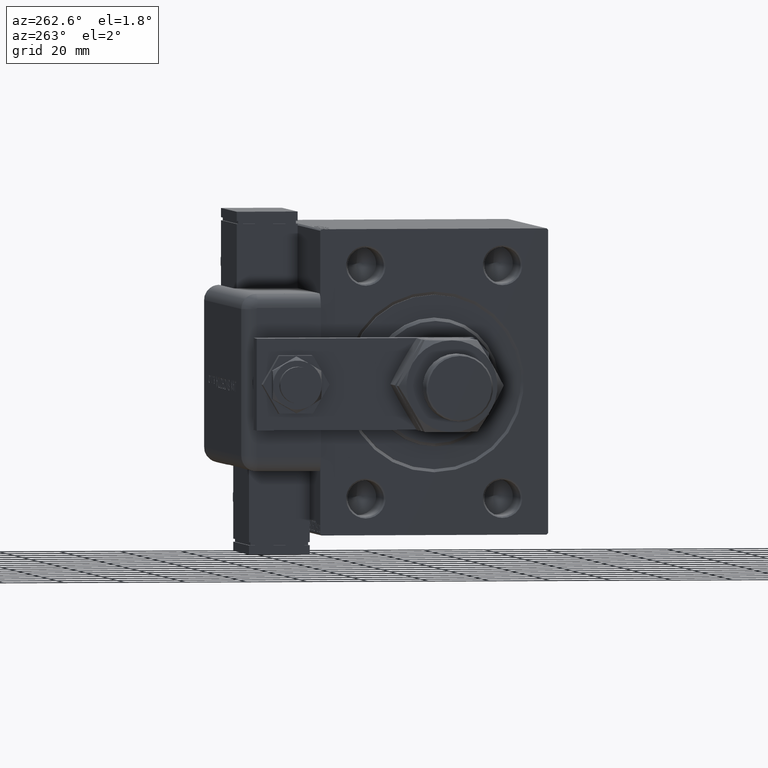
[diagram: clean part render]
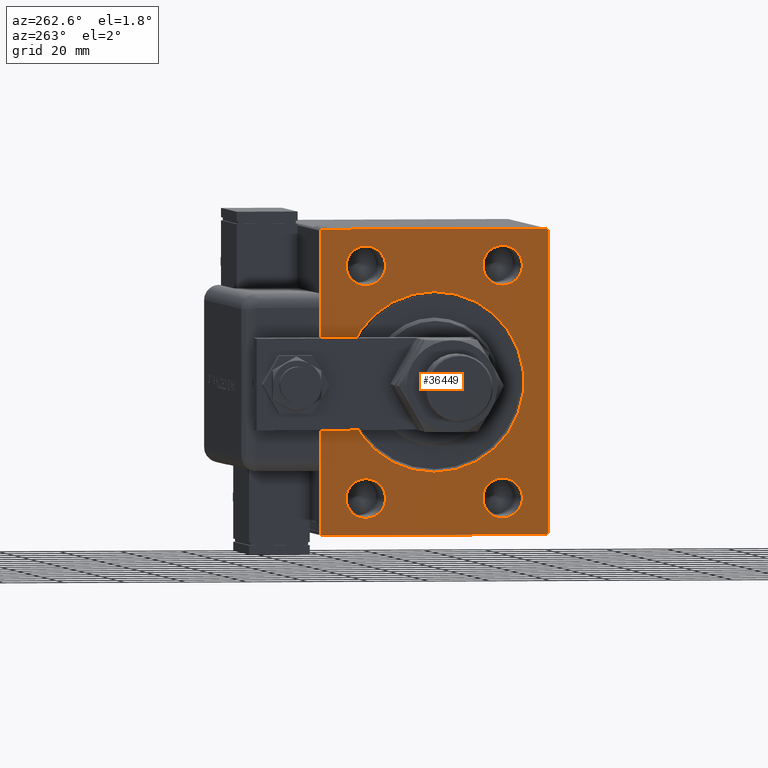
[diagram: same view with one face highlighted and labeled with its STEP entity id]
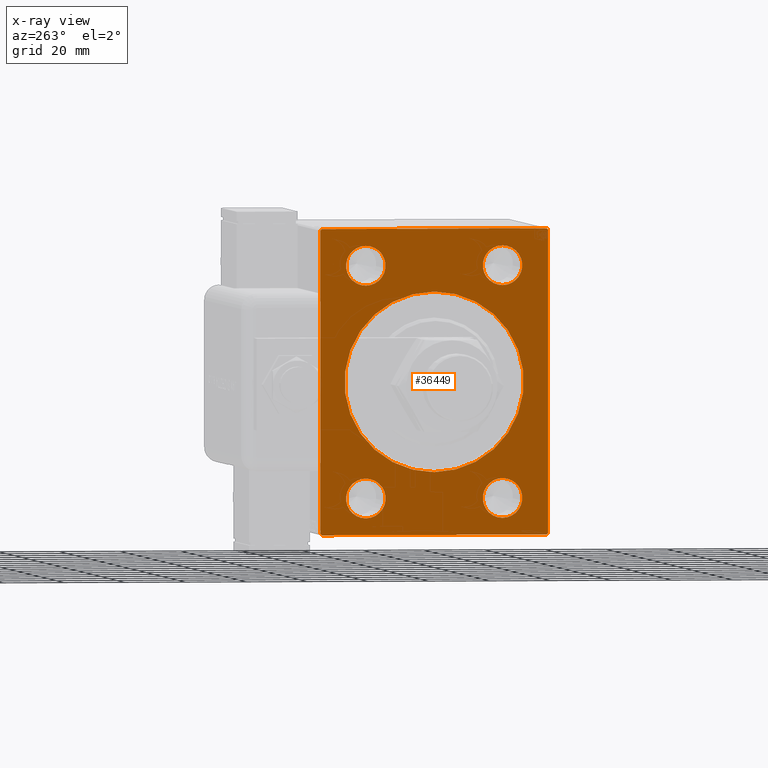
[diagram: x-ray of the same camera — body ghosted, the highlighted face saturated]
A machine part, auxiliary view. The second image highlights one B-rep face of the part: STEP entity #36449.
The next image is the same camera in x-ray: the body ghosted, the highlighted face saturated — about 0% of this face is hidden behind the body in this view.
In plain terms, the highlighted planar face has unit normal (1, 0, 0).
Its self-contained STEP definition (entity closure, byte-faithful):
#363 = CARTESIAN_POINT ( 'NONE',  ( 0.000000000000000000, 0.000000000000000000, 29.50000000000001421 ) ) ;
#383 = AXIS2_PLACEMENT_3D ( 'NONE', #22473, #26860, #16531 ) ;
#700 = DIRECTION ( 'NONE',  ( 0.000000000000000000, 0.000000000000000000, -1.000000000000000000 ) ) ;
#1787 = CARTESIAN_POINT ( 'NONE',  ( 0.000000000000000000, 22.50000000000000000, -31.50000000000001421 ) ) ;
#2289 = LINE ( 'NONE', #48936, #58512 ) ;
#2384 = CIRCLE ( 'NONE', #383, 6.499999999999992006 ) ;
#2466 = LINE ( 'NONE', #36866, #10377 ) ;
#2469 = DIRECTION ( 'NONE',  ( 1.000000000000000000, 0.000000000000000000, 0.000000000000000000 ) ) ;
#3130 = CIRCLE ( 'NONE', #54095, 6.499999999999992006 ) ;
#3387 = VERTEX_POINT ( 'NONE', #363 ) ;
#3608 = CARTESIAN_POINT ( 'NONE',  ( 0.000000000000000000, 0.000000000000000000, 0.000000000000000000 ) ) ;
#3864 = ORIENTED_EDGE ( 'NONE', *, *, #16197, .T. ) ;
#4025 = VERTEX_POINT ( 'NONE', #41399 ) ;
#4077 = VERTEX_POINT ( 'NONE', #47349 ) ;
#4097 = EDGE_CURVE ( 'NONE', #44747, #4077, #18526, .T. ) ;
#4647 = DIRECTION ( 'NONE',  ( 0.000000000000000000, 0.000000000000000000, -1.000000000000000000 ) ) ;
#4697 = EDGE_CURVE ( 'NONE', #55842, #24054, #43068, .T. ) ;
#4980 = DIRECTION ( 'NONE',  ( 1.000000000000000000, 0.000000000000000000, 0.000000000000000000 ) ) ;
#6086 = DIRECTION ( 'NONE',  ( 0.000000000000000000, 0.000000000000000000, -1.000000000000000000 ) ) ;
#6271 = CIRCLE ( 'NONE', #31364, 6.499999999999992006 ) ;
#6301 = VERTEX_POINT ( 'NONE', #53028 ) ;
#6767 = VERTEX_POINT ( 'NONE', #25594 ) ;
#7049 = CARTESIAN_POINT ( 'NONE',  ( 0.000000000000000000, 37.00000000000000711, 50.00000000000000711 ) ) ;
#7498 = DIRECTION ( 'NONE',  ( 1.000000000000000000, 0.000000000000000000, 0.000000000000000000 ) ) ;
#8853 = DIRECTION ( 'NONE',  ( -0.000000000000000000, -0.7071067811865474617, 0.7071067811865474617 ) ) ;
#9031 = DIRECTION ( 'NONE',  ( 0.000000000000000000, -0.7071067811865524577, -0.7071067811865426878 ) ) ;
#9089 = ORIENTED_EDGE ( 'NONE', *, *, #20782, .T. ) ;
#9109 = ORIENTED_EDGE ( 'NONE', *, *, #4097, .T. ) ;
#9238 = EDGE_LOOP ( 'NONE', ( #44792, #43917 ) ) ;
#9317 = EDGE_CURVE ( 'NONE', #54900, #6301, #55876, .T. ) ;
#10377 = VECTOR ( 'NONE', #31238, 1000.000000000000000 ) ;
#10386 = CARTESIAN_POINT ( 'NONE',  ( 0.000000000000000000, -36.99999999999999289, 49.99999999999998579 ) ) ;
#10480 = ORIENTED_EDGE ( 'NONE', *, *, #51135, .F. ) ;
#11156 = VERTEX_POINT ( 'NONE', #22005 ) ;
#11967 = ORIENTED_EDGE ( 'NONE', *, *, #40007, .F. ) ;
#12080 = LINE ( 'NONE', #44957, #26357 ) ;
#13050 = FACE_BOUND ( 'NONE', #59377, .T. ) ;
#13508 = DIRECTION ( 'NONE',  ( 0.000000000000000000, 0.000000000000000000, -1.000000000000000000 ) ) ;
#13843 = ORIENTED_EDGE ( 'NONE', *, *, #4697, .T. ) ;
#14023 = DIRECTION ( 'NONE',  ( 1.000000000000000000, 0.000000000000000000, 0.000000000000000000 ) ) ;
#15341 = EDGE_CURVE ( 'NONE', #4025, #3387, #23292, .T. ) ;
#15475 = CARTESIAN_POINT ( 'NONE',  ( 0.000000000000000000, 22.50000000000000000, -38.00000000000000711 ) ) ;
#16197 = EDGE_CURVE ( 'NONE', #11156, #42169, #23341, .T. ) ;
#16231 = CARTESIAN_POINT ( 'NONE',  ( 0.000000000000000000, 0.000000000000000000, 0.000000000000000000 ) ) ;
#16531 = DIRECTION ( 'NONE',  ( 0.000000000000000000, 0.000000000000000000, -1.000000000000000000 ) ) ;
#18398 = LINE ( 'NONE', #27496, #23951 ) ;
#18419 = CARTESIAN_POINT ( 'NONE',  ( 0.000000000000000000, 22.50000000000000000, 37.99999999999999289 ) ) ;
#18526 = LINE ( 'NONE', #37629, #51045 ) ;
#18632 = DIRECTION ( 'NONE',  ( 0.000000000000000000, 0.000000000000000000, -1.000000000000000000 ) ) ;
#19288 = CIRCLE ( 'NONE', #55303, 6.499999999999992006 ) ;
#19309 = CARTESIAN_POINT ( 'NONE',  ( 0.000000000000000000, 22.50000000000000000, -38.00000000000000711 ) ) ;
#19544 = ORIENTED_EDGE ( 'NONE', *, *, #41555, .T. ) ;
#20033 = ORIENTED_EDGE ( 'NONE', *, *, #36833, .T. ) ;
#20782 = EDGE_CURVE ( 'NONE', #24054, #55842, #29535, .T. ) ;
#21511 = DIRECTION ( 'NONE',  ( 0.000000000000000000, 0.000000000000000000, -1.000000000000000000 ) ) ;
#22005 = CARTESIAN_POINT ( 'NONE',  ( 0.000000000000000000, 22.50000000000000000, -44.50000000000000000 ) ) ;
#22446 = FACE_BOUND ( 'NONE', #9238, .T. ) ;
#22473 = CARTESIAN_POINT ( 'NONE',  ( 0.000000000000000000, -22.50000000000000000, 37.99999999999999289 ) ) ;
#23033 = EDGE_CURVE ( 'NONE', #46882, #30527, #55410, .T. ) ;
#23199 = CARTESIAN_POINT ( 'NONE',  ( 0.000000000000000000, 22.50000000000000000, 37.99999999999999289 ) ) ;
#23292 = CIRCLE ( 'NONE', #58314, 29.50000000000001421 ) ;
#23341 = CIRCLE ( 'NONE', #52370, 6.499999999999992006 ) ;
#23591 = ORIENTED_EDGE ( 'NONE', *, *, #47591, .F. ) ;
#23951 = VECTOR ( 'NONE', #9031, 1000.000000000000000 ) ;
#24054 = VERTEX_POINT ( 'NONE', #51849 ) ;
#25378 = CARTESIAN_POINT ( 'NONE',  ( 0.000000000000000000, -37.50000000000000000, 49.99999999999998579 ) ) ;
#25594 = CARTESIAN_POINT ( 'NONE',  ( 0.000000000000000000, -22.50000000000000000, 31.50000000000000000 ) ) ;
#26357 = VECTOR ( 'NONE', #50275, 1000.000000000000000 ) ;
#26454 = ORIENTED_EDGE ( 'NONE', *, *, #15341, .T. ) ;
#26860 = DIRECTION ( 'NONE',  ( 1.000000000000000000, 0.000000000000000000, 0.000000000000000000 ) ) ;
#27445 = FACE_BOUND ( 'NONE', #44086, .T. ) ;
#27496 = CARTESIAN_POINT ( 'NONE',  ( 0.000000000000000000, 37.50000000000000711, -49.50000000000001421 ) ) ;
#28021 = CARTESIAN_POINT ( 'NONE',  ( 0.000000000000000000, -22.50000000000000000, -38.00000000000000711 ) ) ;
#28537 = AXIS2_PLACEMENT_3D ( 'NONE', #23199, #37907, #13508 ) ;
#28636 = VECTOR ( 'NONE', #700, 1000.000000000000000 ) ;
#29235 = DIRECTION ( 'NONE',  ( 1.000000000000000000, 0.000000000000000000, 0.000000000000000000 ) ) ;
#29535 = CIRCLE ( 'NONE', #28537, 6.499999999999992006 ) ;
#30084 = VECTOR ( 'NONE', #55257, 999.9999999999998863 ) ;
#30194 = CIRCLE ( 'NONE', #51241, 29.50000000000001421 ) ;
#30375 = VERTEX_POINT ( 'NONE', #57069 ) ;
#30475 = VECTOR ( 'NONE', #36601, 999.9999999999998863 ) ;
#30527 = VERTEX_POINT ( 'NONE', #10386 ) ;
#31238 = DIRECTION ( 'NONE',  ( 0.000000000000000000, 1.000000000000000000, 0.000000000000000000 ) ) ;
#31364 = AXIS2_PLACEMENT_3D ( 'NONE', #15475, #29235, #6086 ) ;
#31839 = FACE_BOUND ( 'NONE', #40744, .T. ) ;
#32014 = CARTESIAN_POINT ( 'NONE',  ( 0.000000000000000000, 37.00000000000000711, 50.00000000000000711 ) ) ;
#32138 = PLANE ( 'NONE',  #33164 ) ;
#32371 = DIRECTION ( 'NONE',  ( 1.000000000000000000, 0.000000000000000000, 0.000000000000000000 ) ) ;
#32473 = CARTESIAN_POINT ( 'NONE',  ( 0.000000000000000000, -37.00000000000000000, -50.00000000000000000 ) ) ;
#33164 = AXIS2_PLACEMENT_3D ( 'NONE', #55957, #46563, #21511 ) ;
#33559 = CARTESIAN_POINT ( 'NONE',  ( 0.000000000000000000, 22.50000000000000000, 31.50000000000000000 ) ) ;
#33980 = EDGE_CURVE ( 'NONE', #58754, #43336, #3130, .T. ) ;
#35135 = ORIENTED_EDGE ( 'NONE', *, *, #44924, .F. ) ;
#35946 = VERTEX_POINT ( 'NONE', #38831 ) ;
#36004 = CARTESIAN_POINT ( 'NONE',  ( 0.000000000000000000, -22.50000000000000000, -31.50000000000001421 ) ) ;
#36449 = ADVANCED_FACE ( 'NONE', ( #54734, #27445, #22446, #31839, #13050, #60051 ), #32138, .F. ) ;
#36601 = DIRECTION ( 'NONE',  ( -0.000000000000000000, 0.7071067811865525687, 0.7071067811865425767 ) ) ;
#36833 = EDGE_CURVE ( 'NONE', #3387, #4025, #30194, .T. ) ;
#36866 = CARTESIAN_POINT ( 'NONE',  ( 0.000000000000000000, -37.50000000000000000, -50.00000000000000000 ) ) ;
#37629 = CARTESIAN_POINT ( 'NONE',  ( 0.000000000000000000, -37.00000000000000000, -50.00000000000000000 ) ) ;
#37907 = DIRECTION ( 'NONE',  ( 1.000000000000000000, 0.000000000000000000, 0.000000000000000000 ) ) ;
#38831 = CARTESIAN_POINT ( 'NONE',  ( 0.000000000000000000, 37.50000000000000711, -49.50000000000001421 ) ) ;
#38924 = VERTEX_POINT ( 'NONE', #41514 ) ;
#39846 = DIRECTION ( 'NONE',  ( 0.000000000000000000, -1.387778780781445676E-16, 1.000000000000000000 ) ) ;
#39956 = ORIENTED_EDGE ( 'NONE', *, *, #23033, .T. ) ;
#40007 = EDGE_CURVE ( 'NONE', #44747, #30375, #2466, .T. ) ;
#40070 = EDGE_CURVE ( 'NONE', #38924, #6767, #2384, .T. ) ;
#40355 = CARTESIAN_POINT ( 'NONE',  ( 0.000000000000000000, -22.50000000000000000, 37.99999999999999289 ) ) ;
#40578 = ORIENTED_EDGE ( 'NONE', *, *, #9317, .T. ) ;
#40744 = EDGE_LOOP ( 'NONE', ( #9089, #13843 ) ) ;
#40872 = EDGE_LOOP ( 'NONE', ( #20033, #26454 ) ) ;
#41399 = CARTESIAN_POINT ( 'NONE',  ( 0.000000000000000000, 3.612708057484693970E-15, -29.50000000000001421 ) ) ;
#41514 = CARTESIAN_POINT ( 'NONE',  ( 0.000000000000000000, -22.50000000000000000, 44.49999999999998579 ) ) ;
#41555 = EDGE_CURVE ( 'NONE', #42169, #11156, #6271, .T. ) ;
#41776 = DIRECTION ( 'NONE',  ( 0.000000000000000000, 0.000000000000000000, -1.000000000000000000 ) ) ;
#42169 = VERTEX_POINT ( 'NONE', #1787 ) ;
#42320 = EDGE_CURVE ( 'NONE', #43336, #58754, #19288, .T. ) ;
#42716 = ORIENTED_EDGE ( 'NONE', *, *, #33980, .T. ) ;
#43068 = CIRCLE ( 'NONE', #47066, 6.499999999999992006 ) ;
#43336 = VERTEX_POINT ( 'NONE', #36004 ) ;
#43564 = LINE ( 'NONE', #25378, #28636 ) ;
#43917 = ORIENTED_EDGE ( 'NONE', *, *, #58453, .T. ) ;
#43933 = CIRCLE ( 'NONE', #58935, 6.499999999999992006 ) ;
#44086 = EDGE_LOOP ( 'NONE', ( #54432, #42716 ) ) ;
#44747 = VERTEX_POINT ( 'NONE', #32473 ) ;
#44792 = ORIENTED_EDGE ( 'NONE', *, *, #40070, .T. ) ;
#44924 = EDGE_CURVE ( 'NONE', #54900, #30527, #12080, .T. ) ;
#44957 = CARTESIAN_POINT ( 'NONE',  ( 0.000000000000000000, 37.49999999999999289, 50.00000000000000711 ) ) ;
#46563 = DIRECTION ( 'NONE',  ( 1.000000000000000000, 0.000000000000000000, 0.000000000000000000 ) ) ;
#46882 = VERTEX_POINT ( 'NONE', #47956 ) ;
#47066 = AXIS2_PLACEMENT_3D ( 'NONE', #18419, #4980, #56331 ) ;
#47349 = CARTESIAN_POINT ( 'NONE',  ( 0.000000000000000000, -37.50000000000000000, -49.49999999999997158 ) ) ;
#47591 = EDGE_CURVE ( 'NONE', #35946, #6301, #2289, .T. ) ;
#47956 = CARTESIAN_POINT ( 'NONE',  ( 0.000000000000000000, -37.50000000000000000, 49.49999999999998579 ) ) ;
#48144 = CARTESIAN_POINT ( 'NONE',  ( 0.000000000000000000, -22.50000000000000000, -44.50000000000000000 ) ) ;
#48936 = CARTESIAN_POINT ( 'NONE',  ( 0.000000000000000000, 37.50000000000000711, -50.00000000000000000 ) ) ;
#50046 = DIRECTION ( 'NONE',  ( 0.000000000000000000, 0.000000000000000000, -1.000000000000000000 ) ) ;
#50275 = DIRECTION ( 'NONE',  ( 0.000000000000000000, -1.000000000000000000, -2.775557561562891844E-16 ) ) ;
#51045 = VECTOR ( 'NONE', #8853, 1000.000000000000114 ) ;
#51135 = EDGE_CURVE ( 'NONE', #46882, #4077, #43564, .T. ) ;
#51241 = AXIS2_PLACEMENT_3D ( 'NONE', #3608, #32371, #41776 ) ;
#51630 = CARTESIAN_POINT ( 'NONE',  ( 0.000000000000000000, -37.50000000000000000, 49.49999999999998579 ) ) ;
#51849 = CARTESIAN_POINT ( 'NONE',  ( 0.000000000000000000, 22.50000000000000000, 44.49999999999998579 ) ) ;
#52355 = DIRECTION ( 'NONE',  ( 0.000000000000000000, 0.000000000000000000, -1.000000000000000000 ) ) ;
#52370 = AXIS2_PLACEMENT_3D ( 'NONE', #19309, #14023, #4647 ) ;
#52972 = CARTESIAN_POINT ( 'NONE',  ( 0.000000000000000000, -22.50000000000000000, -38.00000000000000711 ) ) ;
#53028 = CARTESIAN_POINT ( 'NONE',  ( 0.000000000000000000, 37.49999999999999289, 49.50000000000002842 ) ) ;
#53409 = EDGE_LOOP ( 'NONE', ( #10480, #39956, #35135, #40578, #23591, #58202, #11967, #9109 ) ) ;
#54095 = AXIS2_PLACEMENT_3D ( 'NONE', #52972, #61459, #52355 ) ;
#54432 = ORIENTED_EDGE ( 'NONE', *, *, #42320, .T. ) ;
#54734 = FACE_BOUND ( 'NONE', #40872, .T. ) ;
#54900 = VERTEX_POINT ( 'NONE', #32014 ) ;
#55257 = DIRECTION ( 'NONE',  ( -0.000000000000000000, 0.7071067811865525687, -0.7071067811865425767 ) ) ;
#55303 = AXIS2_PLACEMENT_3D ( 'NONE', #28021, #57465, #18632 ) ;
#55410 = LINE ( 'NONE', #51630, #30475 ) ;
#55842 = VERTEX_POINT ( 'NONE', #33559 ) ;
#55876 = LINE ( 'NONE', #7049, #30084 ) ;
#55957 = CARTESIAN_POINT ( 'NONE',  ( 0.000000000000000000, 0.000000000000000000, 0.000000000000000000 ) ) ;
#56331 = DIRECTION ( 'NONE',  ( 0.000000000000000000, 0.000000000000000000, -1.000000000000000000 ) ) ;
#57069 = CARTESIAN_POINT ( 'NONE',  ( 0.000000000000000000, 37.00000000000001421, -50.00000000000000000 ) ) ;
#57465 = DIRECTION ( 'NONE',  ( 1.000000000000000000, 0.000000000000000000, 0.000000000000000000 ) ) ;
#58202 = ORIENTED_EDGE ( 'NONE', *, *, #58613, .T. ) ;
#58314 = AXIS2_PLACEMENT_3D ( 'NONE', #16231, #2469, #50046 ) ;
#58453 = EDGE_CURVE ( 'NONE', #6767, #38924, #43933, .T. ) ;
#58512 = VECTOR ( 'NONE', #39846, 1000.000000000000000 ) ;
#58613 = EDGE_CURVE ( 'NONE', #35946, #30375, #18398, .T. ) ;
#58754 = VERTEX_POINT ( 'NONE', #48144 ) ;
#58935 = AXIS2_PLACEMENT_3D ( 'NONE', #40355, #7498, #60101 ) ;
#59377 = EDGE_LOOP ( 'NONE', ( #19544, #3864 ) ) ;
#60051 = FACE_OUTER_BOUND ( 'NONE', #53409, .T. ) ;
#60101 = DIRECTION ( 'NONE',  ( 0.000000000000000000, 0.000000000000000000, -1.000000000000000000 ) ) ;
#61459 = DIRECTION ( 'NONE',  ( 1.000000000000000000, 0.000000000000000000, 0.000000000000000000 ) ) ;